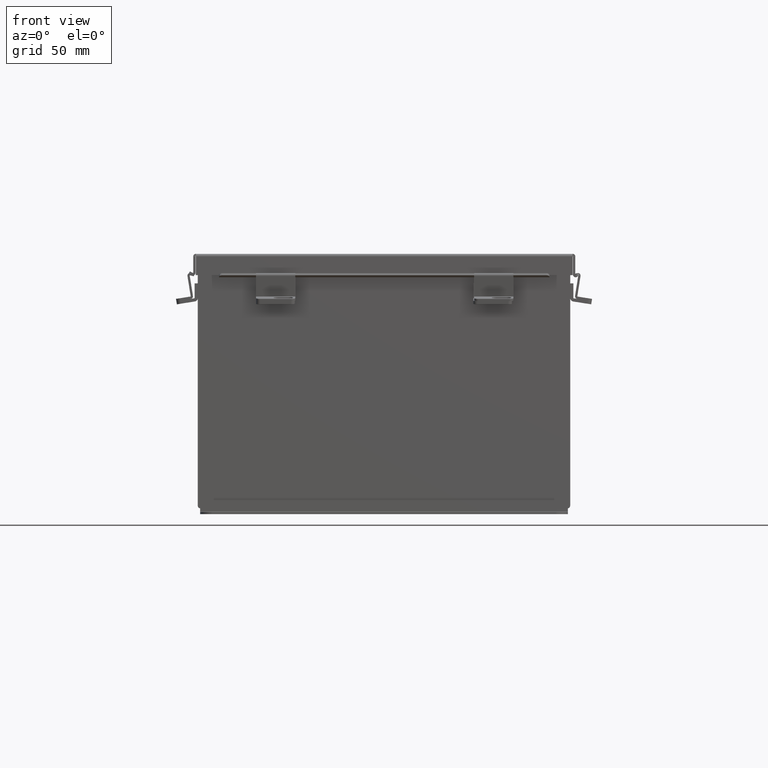
[diagram: clean part render]
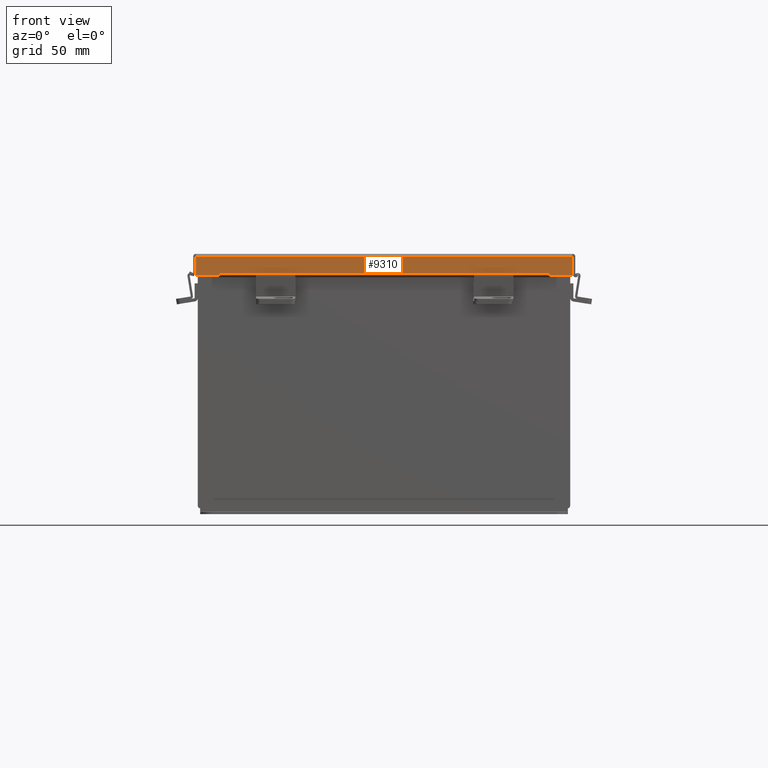
[diagram: same view with one face highlighted and labeled with its STEP entity id]
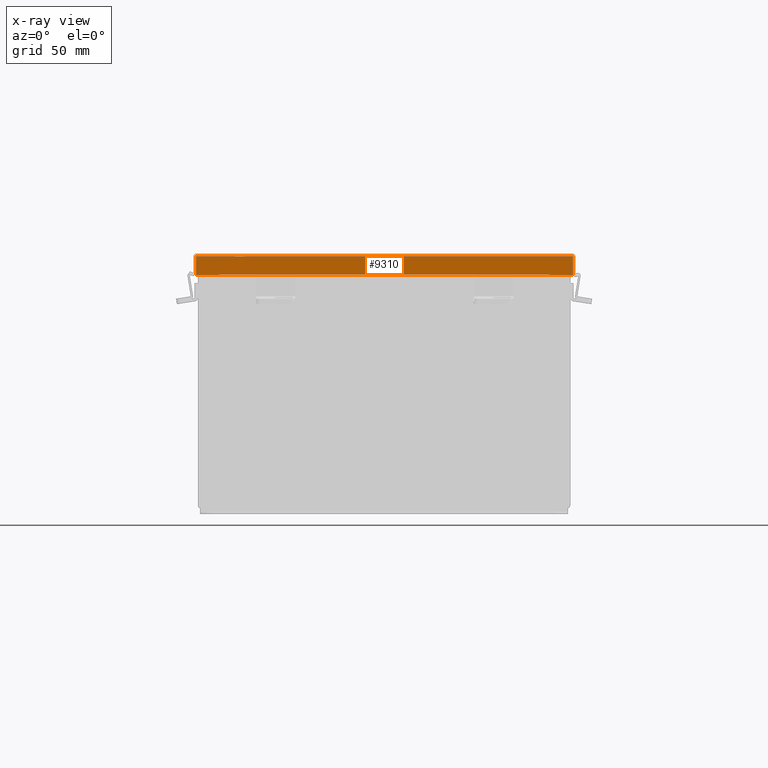
[diagram: x-ray of the same camera — body ghosted, the highlighted face saturated]
A machine part, front view. The second image highlights one B-rep face of the part: STEP entity #9310.
The next image is the same camera in x-ray: the body ghosted, the highlighted face saturated — about 0% of this face is hidden behind the body in this view.
In plain terms, the highlighted planar face has unit normal (0, 1, -0).
Its self-contained STEP definition (entity closure, byte-faithful):
#47 = VECTOR ( 'NONE', #8432, 39.37007874015748100 ) ;
#194 = VECTOR ( 'NONE', #5338, 39.37007874015748100 ) ;
#217 = LINE ( 'NONE', #8353, #194 ) ;
#277 = LINE ( 'NONE', #5400, #47 ) ;
#386 = EDGE_CURVE ( 'NONE', #2087, #9428, #4625, .T. ) ;
#469 = DIRECTION ( 'NONE',  ( 3.183015112497910400E-030, 1.000000000000000000, 3.569293475308493700E-015 ) ) ;
#905 = EDGE_CURVE ( 'NONE', #6730, #2087, #9689, .T. ) ;
#1721 = VECTOR ( 'NONE', #4083, 39.37007874015748100 ) ;
#1800 = VERTEX_POINT ( 'NONE', #4052 ) ;
#1937 = CARTESIAN_POINT ( 'NONE',  ( 6.074478932188153400, -8.156250000000000000, -2.950395833157404200E-014 ) ) ;
#2087 = VERTEX_POINT ( 'NONE', #9704 ) ;
#2225 = ORIENTED_EDGE ( 'NONE', *, *, #2779, .T. ) ;
#2255 = VECTOR ( 'NONE', #7591, 39.37007874015748100 ) ;
#2366 = CARTESIAN_POINT ( 'NONE',  ( 3.201384367575308500E-018, -8.156250000000001800, 0.6123000000000005100 ) ) ;
#2449 = DIRECTION ( 'NONE',  ( -1.000000000000000000, -3.216696931258641000E-030, 5.546899479520625800E-018 ) ) ;
#2779 = EDGE_CURVE ( 'NONE', #8556, #1800, #8333, .T. ) ;
#3018 = EDGE_CURVE ( 'NONE', #8375, #5898, #9495, .T. ) ;
#3024 = ORIENTED_EDGE ( 'NONE', *, *, #3177, .T. ) ;
#3177 = EDGE_CURVE ( 'NONE', #4811, #8556, #4609, .T. ) ;
#3503 = CARTESIAN_POINT ( 'NONE',  ( -5.324478932188150700, -8.156250000000001800, 0.6123000000000005100 ) ) ;
#3765 = CARTESIAN_POINT ( 'NONE',  ( 3.201384367575308500E-018, -8.156250000000001800, 0.6123000000000005100 ) ) ;
#3833 = CARTESIAN_POINT ( 'NONE',  ( 6.074478932188154300, -8.156250000000001800, 0.6122999999999994000 ) ) ;
#3936 = EDGE_CURVE ( 'NONE', #6730, #5898, #8535, .T. ) ;
#4052 = CARTESIAN_POINT ( 'NONE',  ( 5.324478932188149800, -8.156250000000001800, 0.6122999999999994000 ) ) ;
#4083 = DIRECTION ( 'NONE',  ( 7.009925220120862500E-014, 2.102977566036251300E-013, -1.000000000000000000 ) ) ;
#4236 = DIRECTION ( 'NONE',  ( -1.000000000000000000, -3.216696931258641000E-030, 5.546899479520625800E-018 ) ) ;
#4609 = LINE ( 'NONE', #1937, #6419 ) ;
#4625 = LINE ( 'NONE', #9338, #7996 ) ;
#4629 = FACE_OUTER_BOUND ( 'NONE', #5704, .T. ) ;
#4811 = VERTEX_POINT ( 'NONE', #5279 ) ;
#4989 = CARTESIAN_POINT ( 'NONE',  ( 0.0000000000000000000, -8.156250000000000000, -2.950395833157404200E-014 ) ) ;
#5279 = CARTESIAN_POINT ( 'NONE',  ( 6.074478932188154300, -8.156250000000000000, 0.01299999999999901400 ) ) ;
#5338 = DIRECTION ( 'NONE',  ( 0.0000000000000000000, -1.401985044024136600E-013, 1.000000000000000000 ) ) ;
#5400 = CARTESIAN_POINT ( 'NONE',  ( -6.156250000000015100, -8.156250000000000000, 0.01300000000000010700 ) ) ;
#5704 = EDGE_LOOP ( 'NONE', ( #9274, #8190, #6062, #8779, #3024, #2225, #8968, #8419 ) ) ;
#5762 = DIRECTION ( 'NONE',  ( 0.0000000000000000000, -3.569293475308493700E-015, 1.000000000000000000 ) ) ;
#5898 = VERTEX_POINT ( 'NONE', #7421 ) ;
#6062 = ORIENTED_EDGE ( 'NONE', *, *, #3018, .F. ) ;
#6419 = VECTOR ( 'NONE', #7881, 39.37007874015748100 ) ;
#6730 = VERTEX_POINT ( 'NONE', #3503 ) ;
#6860 = CARTESIAN_POINT ( 'NONE',  ( -6.074478932188153400, -8.156250000000000000, 0.0000000000000000000 ) ) ;
#7421 = CARTESIAN_POINT ( 'NONE',  ( -6.074478932188153400, -8.156250000000001800, 0.6123000000000015100 ) ) ;
#7574 = EDGE_CURVE ( 'NONE', #9428, #1800, #217, .T. ) ;
#7591 = DIRECTION ( 'NONE',  ( -0.0000000000000000000, -3.569293475308494500E-015, 1.000000000000000000 ) ) ;
#7846 = VECTOR ( 'NONE', #2449, 39.37007874015748100 ) ;
#7881 = DIRECTION ( 'NONE',  ( 0.0000000000000000000, -3.569293475308494500E-015, 1.000000000000000000 ) ) ;
#7996 = VECTOR ( 'NONE', #8063, 39.37007874015748100 ) ;
#8009 = PLANE ( 'NONE',  #8873 ) ;
#8063 = DIRECTION ( 'NONE',  ( 1.000000000000000000, 3.215975411700707400E-030, -0.0000000000000000000 ) ) ;
#8190 = ORIENTED_EDGE ( 'NONE', *, *, #3936, .T. ) ;
#8260 = VECTOR ( 'NONE', #4236, 39.37007874015748100 ) ;
#8333 = LINE ( 'NONE', #3765, #7846 ) ;
#8353 = CARTESIAN_POINT ( 'NONE',  ( 5.324478932188150700, -8.156250000000000000, 0.5967115427318782100 ) ) ;
#8375 = VERTEX_POINT ( 'NONE', #9047 ) ;
#8419 = ORIENTED_EDGE ( 'NONE', *, *, #386, .F. ) ;
#8432 = DIRECTION ( 'NONE',  ( -1.000000000000000000, -3.191323508412550700E-030, -0.0000000000000000000 ) ) ;
#8535 = LINE ( 'NONE', #2366, #8260 ) ;
#8556 = VERTEX_POINT ( 'NONE', #3833 ) ;
#8779 = ORIENTED_EDGE ( 'NONE', *, *, #9709, .F. ) ;
#8873 = AXIS2_PLACEMENT_3D ( 'NONE', #4989, #469, #5762 ) ;
#8968 = ORIENTED_EDGE ( 'NONE', *, *, #7574, .F. ) ;
#9047 = CARTESIAN_POINT ( 'NONE',  ( -6.074478932188154300, -8.156250000000000000, 0.01300000000000010700 ) ) ;
#9274 = ORIENTED_EDGE ( 'NONE', *, *, #905, .F. ) ;
#9310 = ADVANCED_FACE ( 'NONE', ( #4629 ), #8009, .F. ) ;
#9338 = CARTESIAN_POINT ( 'NONE',  ( -5.324478932188150700, -8.156250000000000000, 0.5967115427318804300 ) ) ;
#9408 = CARTESIAN_POINT ( 'NONE',  ( -5.324478932188150700, -8.156250000000003600, 0.6123000000000005100 ) ) ;
#9428 = VERTEX_POINT ( 'NONE', #9746 ) ;
#9495 = LINE ( 'NONE', #6860, #2255 ) ;
#9689 = LINE ( 'NONE', #9408, #1721 ) ;
#9704 = CARTESIAN_POINT ( 'NONE',  ( -5.324478932188149800, -8.156250000000001800, 0.5967115427318804300 ) ) ;
#9709 = EDGE_CURVE ( 'NONE', #4811, #8375, #277, .T. ) ;
#9746 = CARTESIAN_POINT ( 'NONE',  ( 5.324478932188150700, -8.156250000000001800, 0.5967115427318782100 ) ) ;